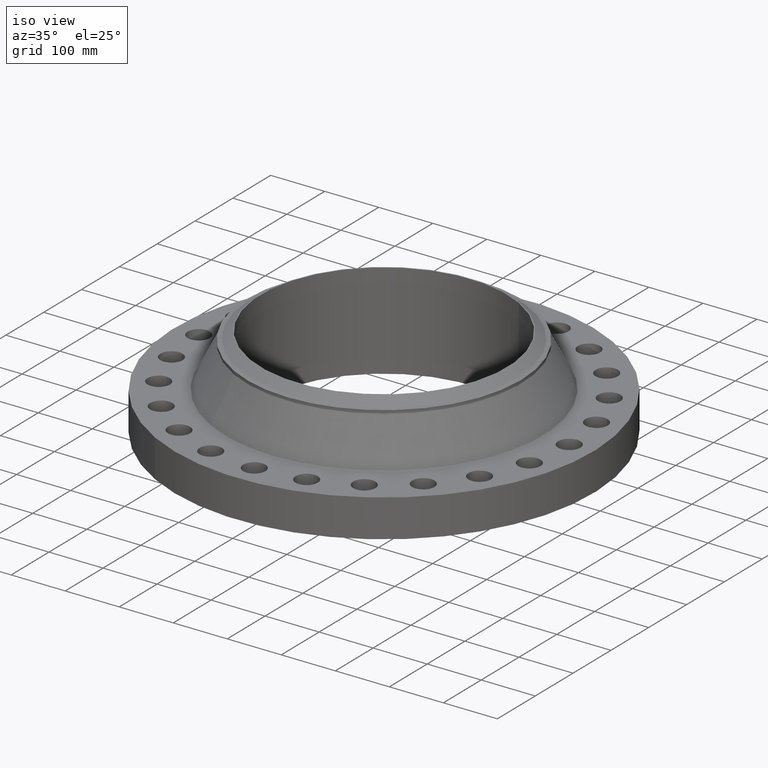
[diagram: clean part render]
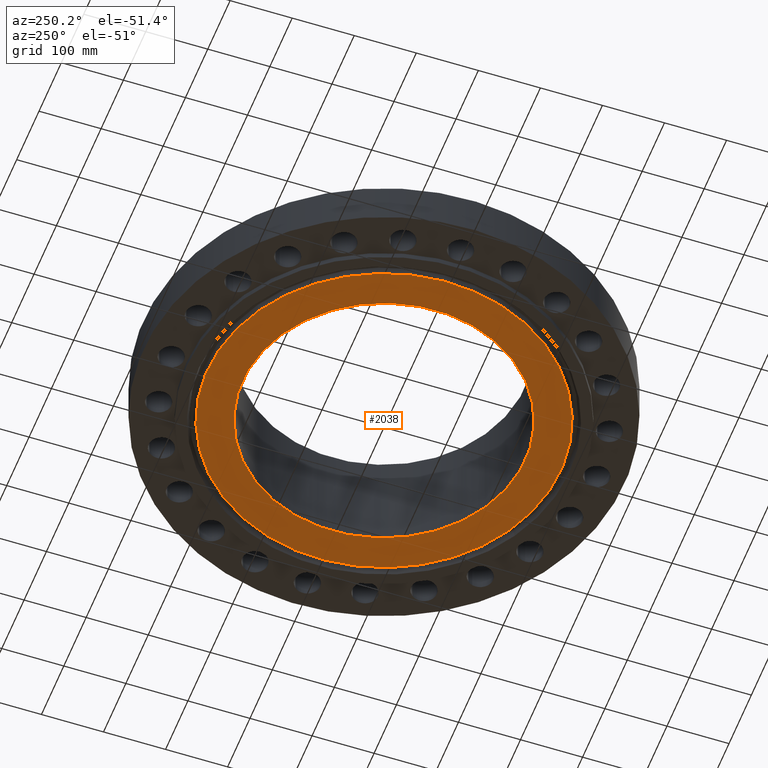
[diagram: tour spotlight — one face highlighted and labeled with its STEP entity id]
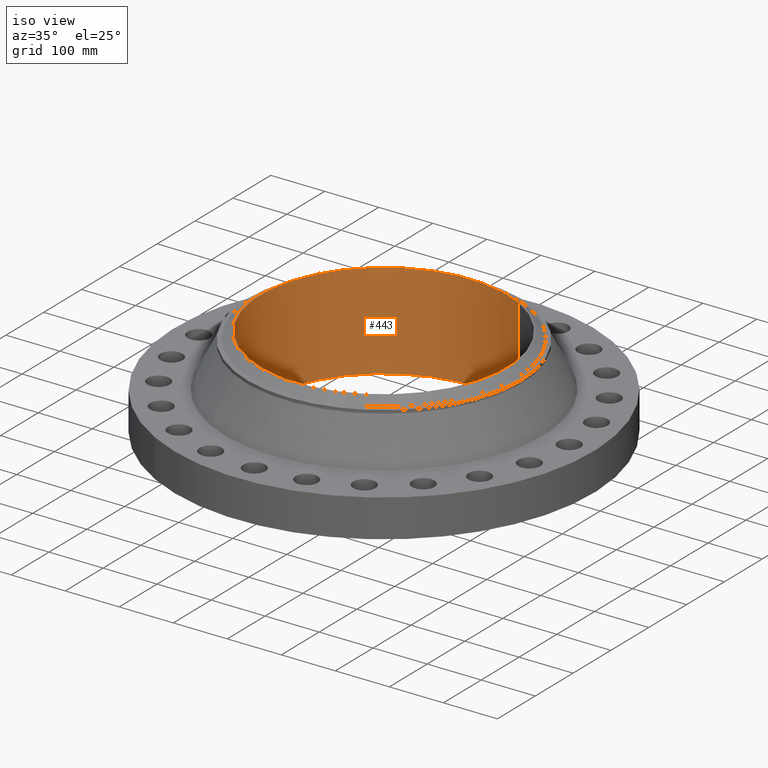
[diagram: tour spotlight — one face highlighted and labeled with its STEP entity id]
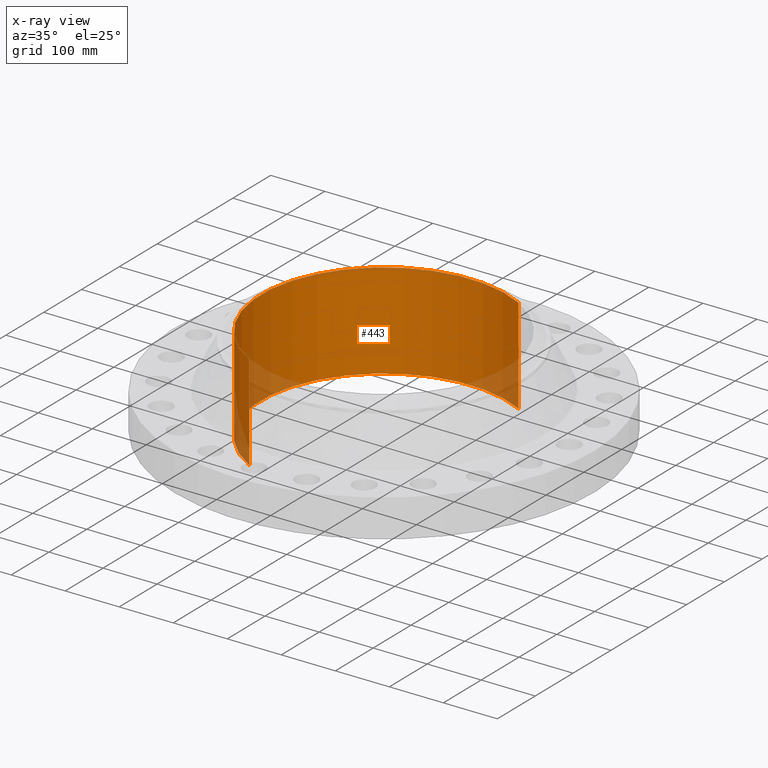
[diagram: x-ray of the same camera — body ghosted, this tour face saturated]
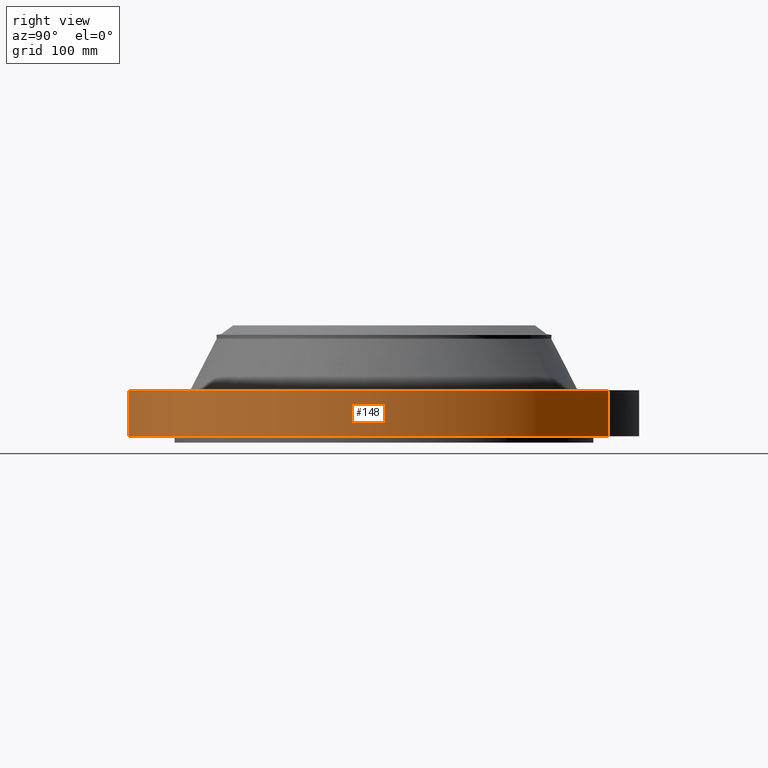
[diagram: tour spotlight — one face highlighted and labeled with its STEP entity id]
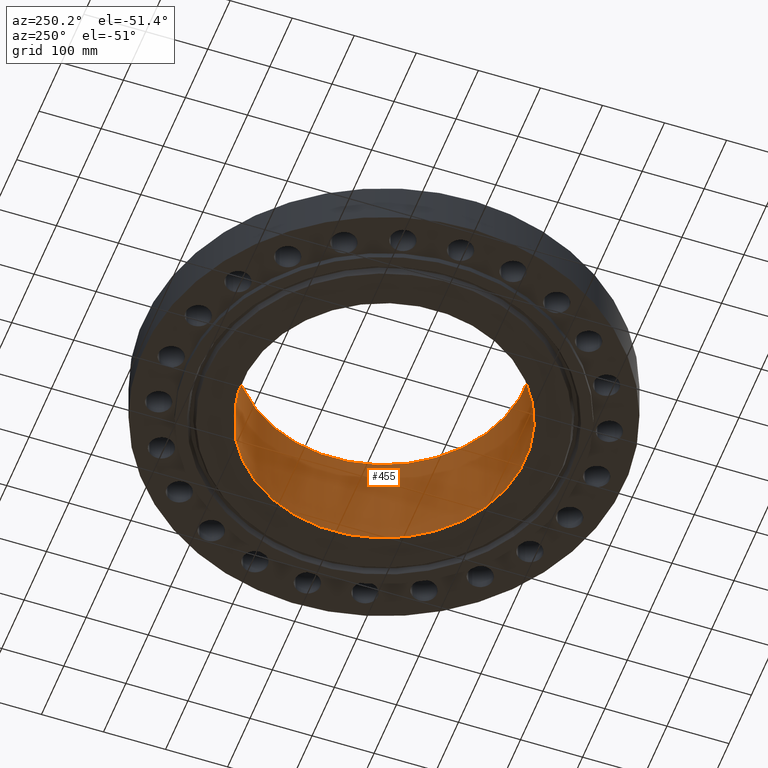
[diagram: tour spotlight — one face highlighted and labeled with its STEP entity id]
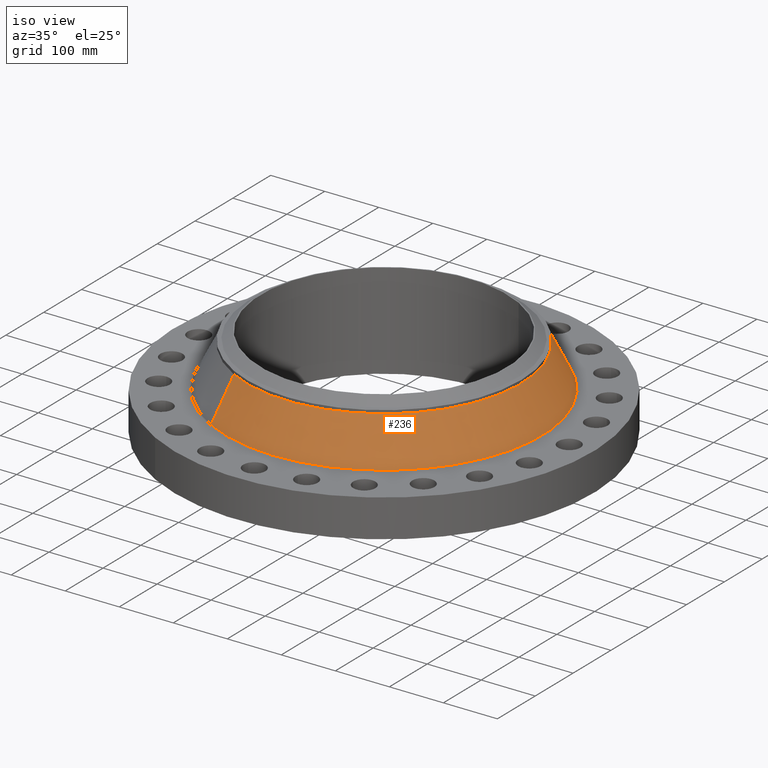
[diagram: tour spotlight — one face highlighted and labeled with its STEP entity id]
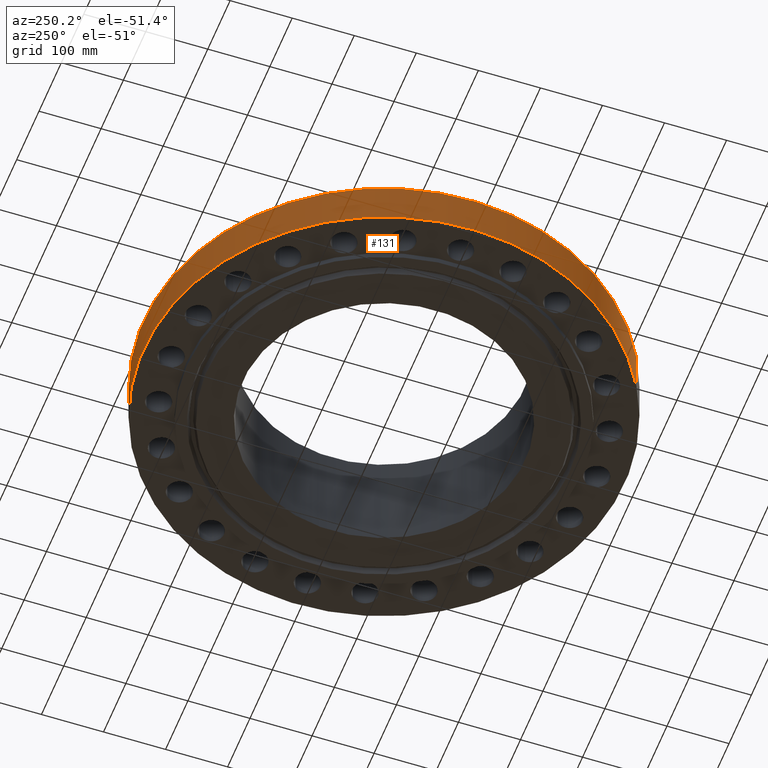
[diagram: tour spotlight — one face highlighted and labeled with its STEP entity id]
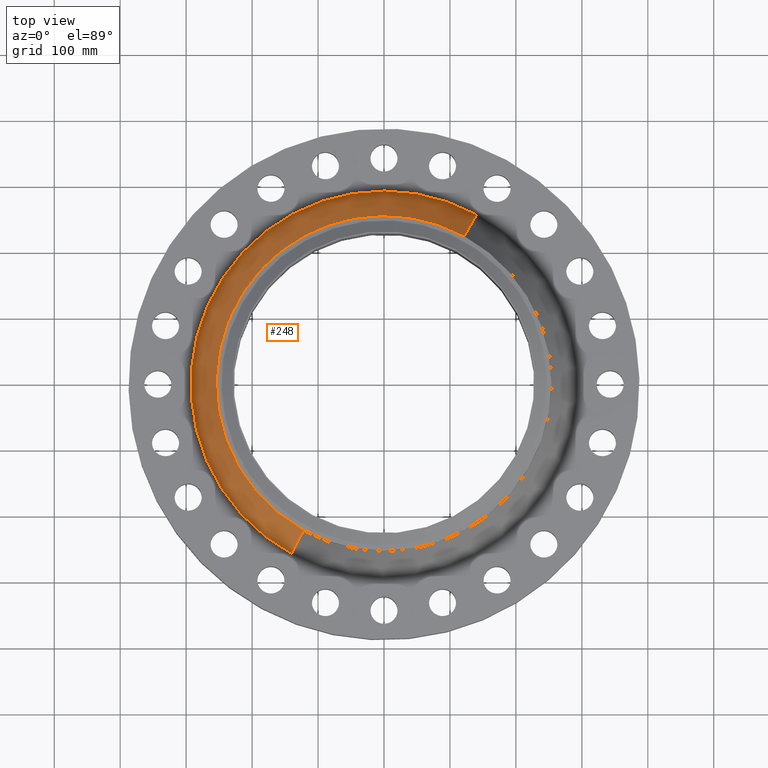
[diagram: tour spotlight — one face highlighted and labeled with its STEP entity id]
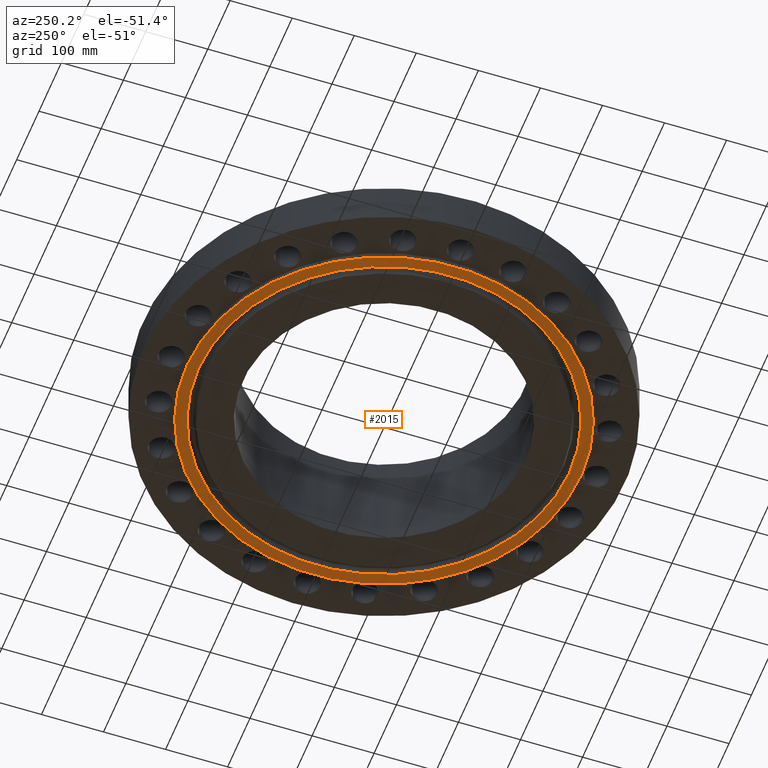
[diagram: tour spotlight — one face highlighted and labeled with its STEP entity id]
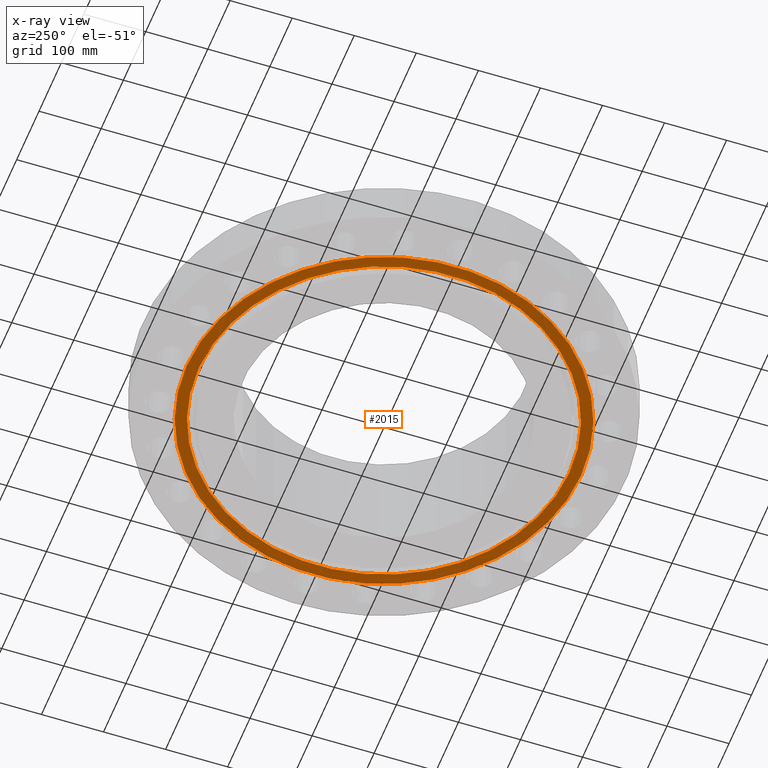
[diagram: x-ray of the same camera — body ghosted, this tour face saturated]
A machine part: a face-by-face anatomy tour. The part has 465 B-rep faces; the first image is the clean iso view, then the 8 largest visible faces are spotlighted one at a time (largest first), each with its STEP entity span.

Face 1 — auxiliary view, entity #2038. In plain terms, the highlighted planar face has unit normal (0, 0, -1).
Definition (entity closure, byte-faithful):
#427=AXIS2_PLACEMENT_3D('Circle Axis2P3D',#425,#426,$) ;
#446=AXIS2_PLACEMENT_3D('Circle Axis2P3D',#444,#445,$) ;
#1991=AXIS2_PLACEMENT_3D('Plane Axis2P3D',#1988,#1989,#1990) ;
#2018=AXIS2_PLACEMENT_3D('Circle Axis2P3D',#2016,#2017,$) ;
#2027=AXIS2_PLACEMENT_3D('Circle Axis2P3D',#2025,#2026,$) ;
#422=CARTESIAN_POINT('Vertex',(-4.29996765576,-7.87103799763,-0.375000000002)) ;
#425=CARTESIAN_POINT('Axis2P3D Location',(0.,0.,-0.375000000002)) ;
#429=CARTESIAN_POINT('Vertex',(4.29996765576,7.87103799763,-0.375000000002)) ;
#444=CARTESIAN_POINT('Axis2P3D Location',(0.,0.,-0.375000000002)) ;
#1988=CARTESIAN_POINT('Axis2P3D Location',(0.,8.96900000004,-0.375000000001)) ;
#2016=CARTESIAN_POINT('Axis2P3D Location',(1.1189649382E-015,1.1189649382E-015,-0.375000000001)) ;
#2020=CARTESIAN_POINT('Vertex',(-5.38610621347,9.8592012916,-0.375000000001)) ;
#2022=CARTESIAN_POINT('Vertex',(5.38610621347,-9.8592012916,-0.375000000001)) ;
#2025=CARTESIAN_POINT('Axis2P3D Location',(-2.23792987641E-015,2.23792987641E-015,-0.375000000001)) ;
#426=DIRECTION('Axis2P3D Direction',(0.,0.,-0.0393700787402)) ;
#445=DIRECTION('Axis2P3D Direction',(0.,0.,-0.0393700787402)) ;
#1989=DIRECTION('Axis2P3D Direction',(0.,0.,-0.0393700787402)) ;
#1990=DIRECTION('Axis2P3D XDirection',(0.0393700787402,0.,0.)) ;
#2017=DIRECTION('Axis2P3D Direction',(0.,0.,-0.0393700787402)) ;
#2026=DIRECTION('Axis2P3D Direction',(0.,0.,-0.0393700787402)) ;
#2031=ORIENTED_EDGE('',*,*,#2024,.T.) ;
#2032=ORIENTED_EDGE('',*,*,#2029,.T.) ;
#2035=ORIENTED_EDGE('',*,*,#448,.F.) ;
#2036=ORIENTED_EDGE('',*,*,#431,.F.) ;
#2037=FACE_BOUND('',#2034,.T.) ;
#2038=ADVANCED_FACE('PartBody',(#2033,#2037),#1992,.T.) ;
#428=CIRCLE('generated circle',#427,8.96900000004) ;
#447=CIRCLE('generated circle',#446,8.96900000004) ;
#2019=CIRCLE('generated circle',#2018,11.2345) ;
#2028=CIRCLE('generated circle',#2027,11.2345) ;
#431=EDGE_CURVE('',#423,#430,#428,.T.) ;
#448=EDGE_CURVE('',#430,#423,#447,.T.) ;
#2024=EDGE_CURVE('',#2021,#2023,#2019,.T.) ;
#2029=EDGE_CURVE('',#2023,#2021,#2028,.T.) ;
#2030=EDGE_LOOP('',(#2031,#2032)) ;
#2034=EDGE_LOOP('',(#2035,#2036)) ;
#2033=FACE_OUTER_BOUND('',#2030,.T.) ;
#1992=PLANE('',#1991) ;
#423=VERTEX_POINT('',#422) ;
#430=VERTEX_POINT('',#429) ;
#2021=VERTEX_POINT('',#2020) ;
#2023=VERTEX_POINT('',#2022) ;

Face 2 — iso view, entity #443. An x-ray twin of the same camera follows (body ghosted, this face saturated) — the face is partly hidden behind the body. In plain terms, the highlighted cylindrical surface (partial cylindrical patch) has radius 227.813 mm, axis along (0, 0, -1).
Definition (entity closure, byte-faithful):
#365=AXIS2_PLACEMENT_3D('Circle Axis2P3D',#363,#364,$) ;
#416=AXIS2_PLACEMENT_3D('Cylinder Axis2P3D',#413,#414,#415) ;
#427=AXIS2_PLACEMENT_3D('Circle Axis2P3D',#425,#426,$) ;
#363=CARTESIAN_POINT('Axis2P3D Location',(0.,0.,6.62000000003)) ;
#367=CARTESIAN_POINT('Vertex',(-4.29996765576,-7.87103799763,6.62000000003)) ;
#369=CARTESIAN_POINT('Vertex',(4.29996765576,7.87103799763,6.62000000003)) ;
#413=CARTESIAN_POINT('Axis2P3D Location',(0.,0.,3.12250000001)) ;
#418=CARTESIAN_POINT('Line Origine',(-4.29996765576,-7.87103799763,3.12250000001)) ;
#422=CARTESIAN_POINT('Vertex',(-4.29996765576,-7.87103799763,-0.375000000002)) ;
#425=CARTESIAN_POINT('Axis2P3D Location',(0.,0.,-0.375000000002)) ;
#429=CARTESIAN_POINT('Vertex',(4.29996765576,7.87103799763,-0.375000000002)) ;
#432=CARTESIAN_POINT('Line Origine',(4.29996765576,7.87103799763,3.12250000001)) ;
#364=DIRECTION('Axis2P3D Direction',(0.,0.,-0.0393700787402)) ;
#414=DIRECTION('Axis2P3D Direction',(0.,0.,-0.0393700787402)) ;
#415=DIRECTION('Axis2P3D XDirection',(0.0188750212049,0.0345504945626,0.)) ;
#419=DIRECTION('Vector Direction',(0.,0.,-0.0393700787402)) ;
#426=DIRECTION('Axis2P3D Direction',(0.,0.,-0.0393700787402)) ;
#433=DIRECTION('Vector Direction',(0.,0.,-0.0393700787402)) ;
#420=VECTOR('Line Direction',#419,0.0393700787402) ;
#434=VECTOR('Line Direction',#433,0.0393700787402) ;
#438=ORIENTED_EDGE('',*,*,#371,.F.) ;
#439=ORIENTED_EDGE('',*,*,#424,.T.) ;
#440=ORIENTED_EDGE('',*,*,#431,.T.) ;
#441=ORIENTED_EDGE('',*,*,#436,.F.) ;
#443=ADVANCED_FACE('PartBody',(#442),#417,.F.) ;
#366=CIRCLE('generated circle',#365,8.96900000004) ;
#428=CIRCLE('generated circle',#427,8.96900000004) ;
#417=CYLINDRICAL_SURFACE('generated cylinder',#416,8.96900000004) ;
#371=EDGE_CURVE('',#368,#370,#366,.T.) ;
#424=EDGE_CURVE('',#368,#423,#421,.T.) ;
#431=EDGE_CURVE('',#423,#430,#428,.T.) ;
#436=EDGE_CURVE('',#370,#430,#435,.T.) ;
#437=EDGE_LOOP('',(#438,#439,#440,#441)) ;
#442=FACE_OUTER_BOUND('',#437,.T.) ;
#421=LINE('Line',#418,#420) ;
#435=LINE('Line',#432,#434) ;
#368=VERTEX_POINT('',#367) ;
#370=VERTEX_POINT('',#369) ;
#423=VERTEX_POINT('',#422) ;
#430=VERTEX_POINT('',#429) ;

Face 3 — right view, entity #148. In plain terms, the highlighted cylindrical surface (partial cylindrical patch) has radius 387.35 mm, axis along (0, 0, -1).
Definition (entity closure, byte-faithful):
#95=AXIS2_PLACEMENT_3D('Cylinder Axis2P3D',#92,#93,#94) ;
#134=AXIS2_PLACEMENT_3D('Circle Axis2P3D',#132,#133,$) ;
#139=AXIS2_PLACEMENT_3D('Circle Axis2P3D',#137,#138,$) ;
#92=CARTESIAN_POINT('Axis2P3D Location',(0.,0.,3.12250000001)) ;
#101=CARTESIAN_POINT('Vertex',(-7.31123946374,-13.3831340689,1.67844740731E-015)) ;
#103=CARTESIAN_POINT('Vertex',(7.31123946374,13.3831340689,1.67844740731E-015)) ;
#106=CARTESIAN_POINT('Line Origine',(-7.31123946374,-13.3831340689,1.37500000001)) ;
#110=CARTESIAN_POINT('Vertex',(-7.31123946374,-13.3831340689,2.75000000001)) ;
#117=CARTESIAN_POINT('Vertex',(7.31123946374,13.3831340689,2.75000000001)) ;
#120=CARTESIAN_POINT('Line Origine',(7.31123946374,13.3831340689,1.37500000001)) ;
#132=CARTESIAN_POINT('Axis2P3D Location',(0.,0.,1.67844740731E-015)) ;
#137=CARTESIAN_POINT('Axis2P3D Location',(0.,0.,2.75000000001)) ;
#93=DIRECTION('Axis2P3D Direction',(0.,0.,-0.0393700787402)) ;
#94=DIRECTION('Axis2P3D XDirection',(0.0188750212049,0.0345504945626,0.)) ;
#107=DIRECTION('Vector Direction',(0.,0.,-0.0393700787402)) ;
#121=DIRECTION('Vector Direction',(0.,0.,-0.0393700787402)) ;
#133=DIRECTION('Axis2P3D Direction',(0.,0.,-0.0393700787402)) ;
#138=DIRECTION('Axis2P3D Direction',(0.,0.,-0.0393700787402)) ;
#108=VECTOR('Line Direction',#107,0.0393700787402) ;
#122=VECTOR('Line Direction',#121,0.0393700787402) ;
#143=ORIENTED_EDGE('',*,*,#136,.F.) ;
#144=ORIENTED_EDGE('',*,*,#124,.T.) ;
#145=ORIENTED_EDGE('',*,*,#141,.T.) ;
#146=ORIENTED_EDGE('',*,*,#112,.F.) ;
#148=ADVANCED_FACE('PartBody',(#147),#96,.T.) ;
#135=CIRCLE('generated circle',#134,15.2500000001) ;
#140=CIRCLE('generated circle',#139,15.2500000001) ;
#96=CYLINDRICAL_SURFACE('generated cylinder',#95,15.2500000001) ;
#112=EDGE_CURVE('',#102,#111,#109,.F.) ;
#124=EDGE_CURVE('',#104,#118,#123,.F.) ;
#136=EDGE_CURVE('',#104,#102,#135,.T.) ;
#141=EDGE_CURVE('',#118,#111,#140,.T.) ;
#142=EDGE_LOOP('',(#143,#144,#145,#146)) ;
#147=FACE_OUTER_BOUND('',#142,.T.) ;
#109=LINE('Line',#106,#108) ;
#123=LINE('Line',#120,#122) ;
#102=VERTEX_POINT('',#101) ;
#104=VERTEX_POINT('',#103) ;
#111=VERTEX_POINT('',#110) ;
#118=VERTEX_POINT('',#117) ;

Face 4 — auxiliary view, entity #455. In plain terms, the highlighted cylindrical surface (partial cylindrical patch) has radius 227.813 mm, axis along (0, 0, -1).
Definition (entity closure, byte-faithful):
#374=AXIS2_PLACEMENT_3D('Circle Axis2P3D',#372,#373,$) ;
#416=AXIS2_PLACEMENT_3D('Cylinder Axis2P3D',#413,#414,#415) ;
#446=AXIS2_PLACEMENT_3D('Circle Axis2P3D',#444,#445,$) ;
#367=CARTESIAN_POINT('Vertex',(-4.29996765576,-7.87103799763,6.62000000003)) ;
#369=CARTESIAN_POINT('Vertex',(4.29996765576,7.87103799763,6.62000000003)) ;
#372=CARTESIAN_POINT('Axis2P3D Location',(0.,0.,6.62000000003)) ;
#413=CARTESIAN_POINT('Axis2P3D Location',(0.,0.,3.12250000001)) ;
#418=CARTESIAN_POINT('Line Origine',(-4.29996765576,-7.87103799763,3.12250000001)) ;
#422=CARTESIAN_POINT('Vertex',(-4.29996765576,-7.87103799763,-0.375000000002)) ;
#429=CARTESIAN_POINT('Vertex',(4.29996765576,7.87103799763,-0.375000000002)) ;
#432=CARTESIAN_POINT('Line Origine',(4.29996765576,7.87103799763,3.12250000001)) ;
#444=CARTESIAN_POINT('Axis2P3D Location',(0.,0.,-0.375000000002)) ;
#373=DIRECTION('Axis2P3D Direction',(0.,0.,-0.0393700787402)) ;
#414=DIRECTION('Axis2P3D Direction',(0.,0.,-0.0393700787402)) ;
#415=DIRECTION('Axis2P3D XDirection',(0.0188750212049,0.0345504945626,0.)) ;
#419=DIRECTION('Vector Direction',(0.,0.,-0.0393700787402)) ;
#433=DIRECTION('Vector Direction',(0.,0.,-0.0393700787402)) ;
#445=DIRECTION('Axis2P3D Direction',(0.,0.,-0.0393700787402)) ;
#420=VECTOR('Line Direction',#419,0.0393700787402) ;
#434=VECTOR('Line Direction',#433,0.0393700787402) ;
#450=ORIENTED_EDGE('',*,*,#376,.F.) ;
#451=ORIENTED_EDGE('',*,*,#436,.T.) ;
#452=ORIENTED_EDGE('',*,*,#448,.T.) ;
#453=ORIENTED_EDGE('',*,*,#424,.F.) ;
#455=ADVANCED_FACE('PartBody',(#454),#417,.F.) ;
#375=CIRCLE('generated circle',#374,8.96900000004) ;
#447=CIRCLE('generated circle',#446,8.96900000004) ;
#417=CYLINDRICAL_SURFACE('generated cylinder',#416,8.96900000004) ;
#376=EDGE_CURVE('',#370,#368,#375,.T.) ;
#424=EDGE_CURVE('',#368,#423,#421,.T.) ;
#436=EDGE_CURVE('',#370,#430,#435,.T.) ;
#448=EDGE_CURVE('',#430,#423,#447,.T.) ;
#449=EDGE_LOOP('',(#450,#451,#452,#453)) ;
#454=FACE_OUTER_BOUND('',#449,.T.) ;
#421=LINE('Line',#418,#420) ;
#435=LINE('Line',#432,#434) ;
#368=VERTEX_POINT('',#367) ;
#370=VERTEX_POINT('',#369) ;
#423=VERTEX_POINT('',#422) ;
#430=VERTEX_POINT('',#429) ;

Face 5 — iso view, entity #236. In plain terms, the highlighted conical surface has half-angle 26.935 deg.
Definition (entity closure, byte-faithful):
#172=AXIS2_PLACEMENT_3D('Circle Axis2P3D',#170,#171,$) ;
#209=AXIS2_PLACEMENT_3D('Cone Axis2P3D',#206,#207,#208) ;
#220=AXIS2_PLACEMENT_3D('Circle Axis2P3D',#218,#219,$) ;
#167=CARTESIAN_POINT('Vertex',(5.52616913341,10.1155847468,2.81564305084)) ;
#170=CARTESIAN_POINT('Axis2P3D Location',(0.,0.,2.81564305084)) ;
#174=CARTESIAN_POINT('Vertex',(-5.52616913341,-10.1155847468,2.81564305084)) ;
#206=CARTESIAN_POINT('Axis2P3D Location',(0.,0.,5.82031923873)) ;
#211=CARTESIAN_POINT('Line Origine',(5.16021225973,9.44570518287,4.31798114478)) ;
#215=CARTESIAN_POINT('Vertex',(4.79425538606,8.77582561894,5.82031923873)) ;
#218=CARTESIAN_POINT('Axis2P3D Location',(0.,0.,5.82031923873)) ;
#222=CARTESIAN_POINT('Vertex',(-4.79425538606,-8.77582561894,5.82031923873)) ;
#225=CARTESIAN_POINT('Line Origine',(-5.16021225973,-9.44570518287,4.31798114478)) ;
#171=DIRECTION('Axis2P3D Direction',(0.,0.,-0.0393700787402)) ;
#207=DIRECTION('Axis2P3D Direction',(0.,0.,-0.0393700787402)) ;
#208=DIRECTION('Axis2P3D XDirection',(-0.0188750212049,-0.0345504945626,0.)) ;
#212=DIRECTION('Vector Direction',(0.00854990473612,0.0156504956413,-0.0350993477887)) ;
#219=DIRECTION('Axis2P3D Direction',(0.,0.,-0.0393700787402)) ;
#226=DIRECTION('Vector Direction',(-0.00854990473612,-0.0156504956413,-0.0350993477887)) ;
#213=VECTOR('Line Direction',#212,0.0393700787402) ;
#227=VECTOR('Line Direction',#226,0.0393700787402) ;
#231=ORIENTED_EDGE('',*,*,#176,.F.) ;
#232=ORIENTED_EDGE('',*,*,#217,.T.) ;
#233=ORIENTED_EDGE('',*,*,#224,.T.) ;
#234=ORIENTED_EDGE('',*,*,#229,.F.) ;
#236=ADVANCED_FACE('PartBody',(#235),#210,.T.) ;
#173=CIRCLE('generated circle',#172,11.5266473903) ;
#221=CIRCLE('generated circle',#220,10.) ;
#210=CONICAL_SURFACE('Cone',#209,10.,0.470099031461) ;
#176=EDGE_CURVE('',#168,#175,#173,.T.) ;
#217=EDGE_CURVE('',#168,#216,#214,.F.) ;
#224=EDGE_CURVE('',#216,#223,#221,.T.) ;
#229=EDGE_CURVE('',#175,#223,#228,.F.) ;
#230=EDGE_LOOP('',(#231,#232,#233,#234)) ;
#235=FACE_OUTER_BOUND('',#230,.T.) ;
#214=LINE('Line',#211,#213) ;
#228=LINE('Line',#225,#227) ;
#168=VERTEX_POINT('',#167) ;
#175=VERTEX_POINT('',#174) ;
#216=VERTEX_POINT('',#215) ;
#223=VERTEX_POINT('',#222) ;

Face 6 — auxiliary view, entity #131. In plain terms, the highlighted cylindrical surface (partial cylindrical patch) has radius 387.35 mm, axis along (0, 0, -1).
Definition (entity closure, byte-faithful):
#95=AXIS2_PLACEMENT_3D('Cylinder Axis2P3D',#92,#93,#94) ;
#99=AXIS2_PLACEMENT_3D('Circle Axis2P3D',#97,#98,$) ;
#115=AXIS2_PLACEMENT_3D('Circle Axis2P3D',#113,#114,$) ;
#92=CARTESIAN_POINT('Axis2P3D Location',(0.,0.,3.12250000001)) ;
#97=CARTESIAN_POINT('Axis2P3D Location',(0.,0.,1.67844740731E-015)) ;
#101=CARTESIAN_POINT('Vertex',(-7.31123946374,-13.3831340689,1.67844740731E-015)) ;
#103=CARTESIAN_POINT('Vertex',(7.31123946374,13.3831340689,1.67844740731E-015)) ;
#106=CARTESIAN_POINT('Line Origine',(-7.31123946374,-13.3831340689,1.37500000001)) ;
#110=CARTESIAN_POINT('Vertex',(-7.31123946374,-13.3831340689,2.75000000001)) ;
#113=CARTESIAN_POINT('Axis2P3D Location',(0.,0.,2.75000000001)) ;
#117=CARTESIAN_POINT('Vertex',(7.31123946374,13.3831340689,2.75000000001)) ;
#120=CARTESIAN_POINT('Line Origine',(7.31123946374,13.3831340689,1.37500000001)) ;
#93=DIRECTION('Axis2P3D Direction',(0.,0.,-0.0393700787402)) ;
#94=DIRECTION('Axis2P3D XDirection',(0.0188750212049,0.0345504945626,0.)) ;
#98=DIRECTION('Axis2P3D Direction',(0.,0.,-0.0393700787402)) ;
#107=DIRECTION('Vector Direction',(0.,0.,-0.0393700787402)) ;
#114=DIRECTION('Axis2P3D Direction',(0.,0.,-0.0393700787402)) ;
#121=DIRECTION('Vector Direction',(0.,0.,-0.0393700787402)) ;
#108=VECTOR('Line Direction',#107,0.0393700787402) ;
#122=VECTOR('Line Direction',#121,0.0393700787402) ;
#126=ORIENTED_EDGE('',*,*,#105,.F.) ;
#127=ORIENTED_EDGE('',*,*,#112,.T.) ;
#128=ORIENTED_EDGE('',*,*,#119,.T.) ;
#129=ORIENTED_EDGE('',*,*,#124,.F.) ;
#131=ADVANCED_FACE('PartBody',(#130),#96,.T.) ;
#100=CIRCLE('generated circle',#99,15.2500000001) ;
#116=CIRCLE('generated circle',#115,15.2500000001) ;
#96=CYLINDRICAL_SURFACE('generated cylinder',#95,15.2500000001) ;
#105=EDGE_CURVE('',#102,#104,#100,.T.) ;
#112=EDGE_CURVE('',#102,#111,#109,.F.) ;
#119=EDGE_CURVE('',#111,#118,#116,.T.) ;
#124=EDGE_CURVE('',#104,#118,#123,.F.) ;
#125=EDGE_LOOP('',(#126,#127,#128,#129)) ;
#130=FACE_OUTER_BOUND('',#125,.T.) ;
#109=LINE('Line',#106,#108) ;
#123=LINE('Line',#120,#122) ;
#102=VERTEX_POINT('',#101) ;
#104=VERTEX_POINT('',#103) ;
#111=VERTEX_POINT('',#110) ;
#118=VERTEX_POINT('',#117) ;

Face 7 — top view, entity #248. In plain terms, the highlighted conical surface has half-angle 26.935 deg.
Definition (entity closure, byte-faithful):
#196=AXIS2_PLACEMENT_3D('Circle Axis2P3D',#194,#195,$) ;
#209=AXIS2_PLACEMENT_3D('Cone Axis2P3D',#206,#207,#208) ;
#239=AXIS2_PLACEMENT_3D('Circle Axis2P3D',#237,#238,$) ;
#167=CARTESIAN_POINT('Vertex',(5.52616913341,10.1155847468,2.81564305084)) ;
#174=CARTESIAN_POINT('Vertex',(-5.52616913341,-10.1155847468,2.81564305084)) ;
#194=CARTESIAN_POINT('Axis2P3D Location',(0.,0.,2.81564305084)) ;
#206=CARTESIAN_POINT('Axis2P3D Location',(0.,0.,5.82031923873)) ;
#211=CARTESIAN_POINT('Line Origine',(5.16021225973,9.44570518287,4.31798114478)) ;
#215=CARTESIAN_POINT('Vertex',(4.79425538606,8.77582561894,5.82031923873)) ;
#222=CARTESIAN_POINT('Vertex',(-4.79425538606,-8.77582561894,5.82031923873)) ;
#225=CARTESIAN_POINT('Line Origine',(-5.16021225973,-9.44570518287,4.31798114478)) ;
#237=CARTESIAN_POINT('Axis2P3D Location',(0.,0.,5.82031923873)) ;
#195=DIRECTION('Axis2P3D Direction',(0.,0.,-0.0393700787402)) ;
#207=DIRECTION('Axis2P3D Direction',(0.,0.,-0.0393700787402)) ;
#208=DIRECTION('Axis2P3D XDirection',(-0.0188750212049,-0.0345504945626,0.)) ;
#212=DIRECTION('Vector Direction',(0.00854990473612,0.0156504956413,-0.0350993477887)) ;
#226=DIRECTION('Vector Direction',(-0.00854990473612,-0.0156504956413,-0.0350993477887)) ;
#238=DIRECTION('Axis2P3D Direction',(0.,0.,-0.0393700787402)) ;
#213=VECTOR('Line Direction',#212,0.0393700787402) ;
#227=VECTOR('Line Direction',#226,0.0393700787402) ;
#243=ORIENTED_EDGE('',*,*,#198,.F.) ;
#244=ORIENTED_EDGE('',*,*,#229,.T.) ;
#245=ORIENTED_EDGE('',*,*,#241,.T.) ;
#246=ORIENTED_EDGE('',*,*,#217,.F.) ;
#248=ADVANCED_FACE('PartBody',(#247),#210,.T.) ;
#197=CIRCLE('generated circle',#196,11.5266473903) ;
#240=CIRCLE('generated circle',#239,10.) ;
#210=CONICAL_SURFACE('Cone',#209,10.,0.470099031461) ;
#198=EDGE_CURVE('',#175,#168,#197,.T.) ;
#217=EDGE_CURVE('',#168,#216,#214,.F.) ;
#229=EDGE_CURVE('',#175,#223,#228,.F.) ;
#241=EDGE_CURVE('',#223,#216,#240,.T.) ;
#242=EDGE_LOOP('',(#243,#244,#245,#246)) ;
#247=FACE_OUTER_BOUND('',#242,.T.) ;
#214=LINE('Line',#211,#213) ;
#228=LINE('Line',#225,#227) ;
#168=VERTEX_POINT('',#167) ;
#175=VERTEX_POINT('',#174) ;
#216=VERTEX_POINT('',#215) ;
#223=VERTEX_POINT('',#222) ;

Face 8 — auxiliary view, entity #2015. An x-ray twin of the same camera follows (body ghosted, this face saturated) — the face is partly hidden behind the body. In plain terms, the highlighted planar face has unit normal (0, 0, -1).
Definition (entity closure, byte-faithful):
#517=AXIS2_PLACEMENT_3D('Circle Axis2P3D',#515,#516,$) ;
#552=AXIS2_PLACEMENT_3D('Circle Axis2P3D',#550,#551,$) ;
#1991=AXIS2_PLACEMENT_3D('Plane Axis2P3D',#1988,#1989,#1990) ;
#1999=AXIS2_PLACEMENT_3D('Circle Axis2P3D',#1997,#1998,$) ;
#2008=AXIS2_PLACEMENT_3D('Circle Axis2P3D',#2006,#2007,$) ;
#515=CARTESIAN_POINT('Axis2P3D Location',(0.,0.,-0.375000000002)) ;
#519=CARTESIAN_POINT('Vertex',(-5.99281923258,-10.9697820237,-0.375000000002)) ;
#521=CARTESIAN_POINT('Vertex',(5.99281923258,10.9697820237,-0.375000000002)) ;
#550=CARTESIAN_POINT('Axis2P3D Location',(0.,0.,-0.375000000002)) ;
#1988=CARTESIAN_POINT('Axis2P3D Location',(0.,8.96900000004,-0.375000000001)) ;
#1997=CARTESIAN_POINT('Axis2P3D Location',(-2.79741234551E-016,1.1189649382E-015,-0.375000000001)) ;
#2001=CARTESIAN_POINT('Vertex',(5.64068117447,-10.325197632,-0.375000000001)) ;
#2003=CARTESIAN_POINT('Vertex',(-5.64068117447,10.325197632,-0.375000000001)) ;
#2006=CARTESIAN_POINT('Axis2P3D Location',(-1.39870617276E-015,-2.23792987641E-015,-0.375000000001)) ;
#516=DIRECTION('Axis2P3D Direction',(0.,0.,-0.0393700787402)) ;
#551=DIRECTION('Axis2P3D Direction',(0.,0.,-0.0393700787402)) ;
#1989=DIRECTION('Axis2P3D Direction',(0.,0.,-0.0393700787402)) ;
#1990=DIRECTION('Axis2P3D XDirection',(0.0393700787402,0.,0.)) ;
#1998=DIRECTION('Axis2P3D Direction',(0.,0.,-0.0393700787402)) ;
#2007=DIRECTION('Axis2P3D Direction',(0.,0.,-0.0393700787402)) ;
#1994=ORIENTED_EDGE('',*,*,#523,.T.) ;
#1995=ORIENTED_EDGE('',*,*,#554,.T.) ;
#2012=ORIENTED_EDGE('',*,*,#2005,.F.) ;
#2013=ORIENTED_EDGE('',*,*,#2010,.F.) ;
#2014=FACE_BOUND('',#2011,.T.) ;
#2015=ADVANCED_FACE('PartBody',(#1996,#2014),#1992,.T.) ;
#518=CIRCLE('generated circle',#517,12.5000000001) ;
#553=CIRCLE('generated circle',#552,12.5000000001) ;
#2000=CIRCLE('generated circle',#1999,11.7655) ;
#2009=CIRCLE('generated circle',#2008,11.7655) ;
#523=EDGE_CURVE('',#520,#522,#518,.T.) ;
#554=EDGE_CURVE('',#522,#520,#553,.T.) ;
#2005=EDGE_CURVE('',#2002,#2004,#2000,.T.) ;
#2010=EDGE_CURVE('',#2004,#2002,#2009,.T.) ;
#1993=EDGE_LOOP('',(#1994,#1995)) ;
#2011=EDGE_LOOP('',(#2012,#2013)) ;
#1996=FACE_OUTER_BOUND('',#1993,.T.) ;
#1992=PLANE('',#1991) ;
#520=VERTEX_POINT('',#519) ;
#522=VERTEX_POINT('',#521) ;
#2002=VERTEX_POINT('',#2001) ;
#2004=VERTEX_POINT('',#2003) ;